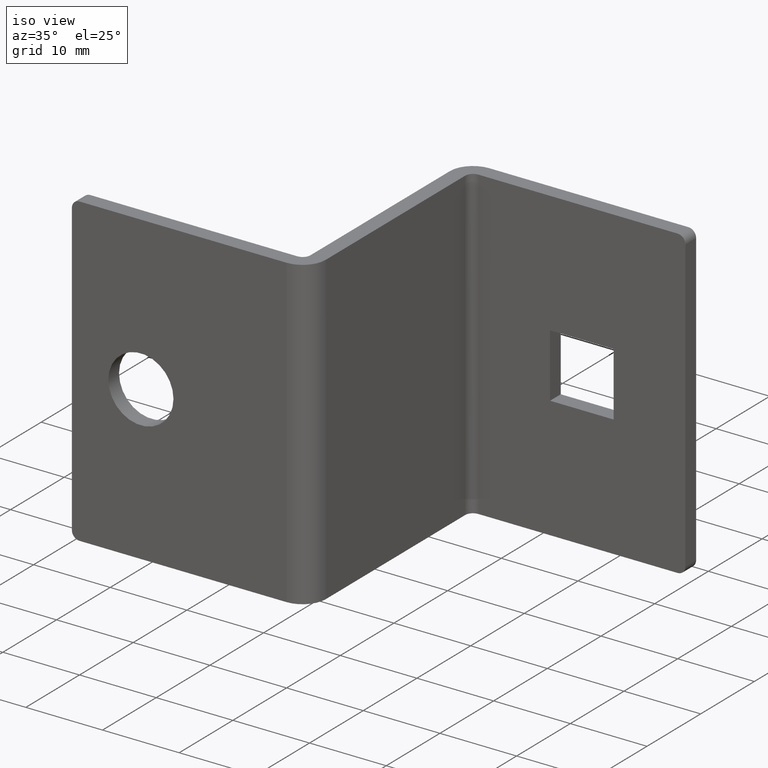
[diagram: clean part render]
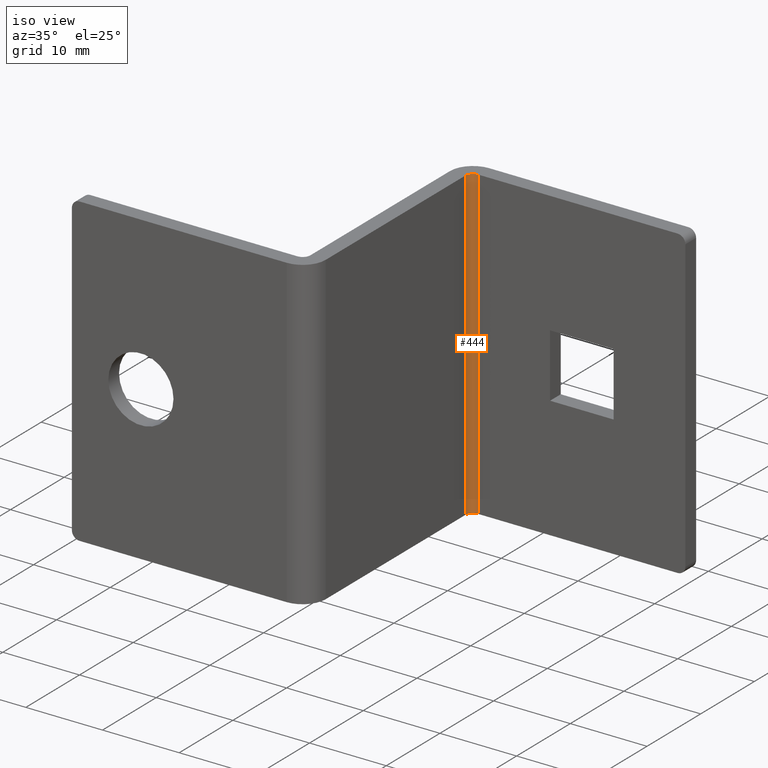
[diagram: same view with one face highlighted and labeled with its STEP entity id]
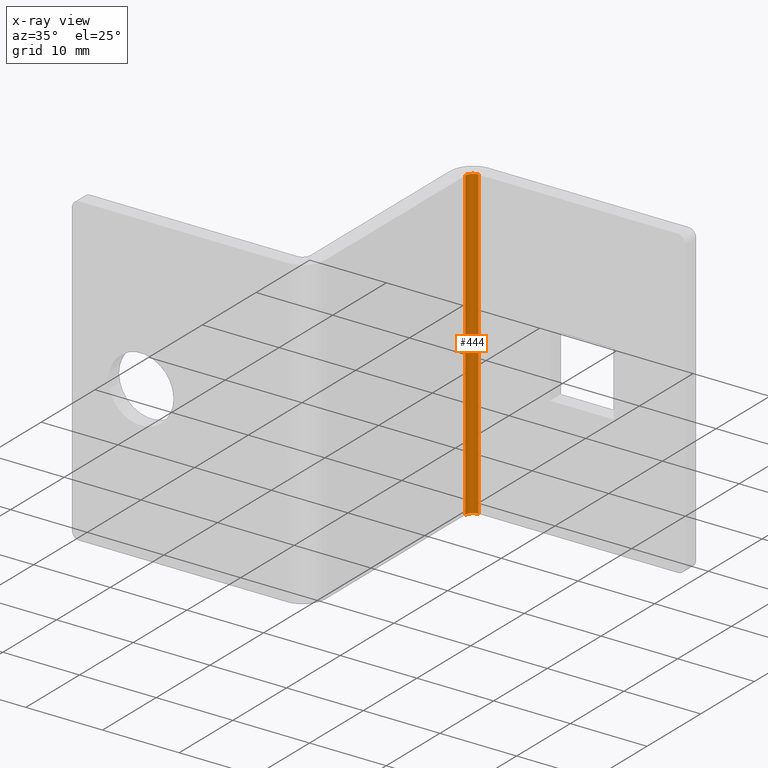
[diagram: x-ray of the same camera — body ghosted, the highlighted face saturated]
A machine part, iso view. The second image highlights one B-rep face of the part: STEP entity #444.
The next image is the same camera in x-ray: the body ghosted, the highlighted face saturated — about 0% of this face is hidden behind the body in this view.
In plain terms, the highlighted cylindrical surface (edge-blend (fillet) strip) has radius 1 mm, axis along (0, 0, 1).
Its self-contained STEP definition (entity closure, byte-faithful):
#44=LINE('',#674,#88);
#65=LINE('',#732,#109);
#88=VECTOR('',#543,40.);
#109=VECTOR('',#598,40.);
#138=FACE_OUTER_BOUND('',#164,.T.);
#164=EDGE_LOOP('',(#366,#367,#368,#369));
#187=CIRCLE('',#484,1.00000000000001);
#188=CIRCLE('',#485,1.00000000000001);
#209=VERTEX_POINT('',#671);
#210=VERTEX_POINT('',#673);
#229=VERTEX_POINT('',#728);
#230=VERTEX_POINT('',#730);
#256=EDGE_CURVE('',#210,#209,#44,.T.);
#283=EDGE_CURVE('',#229,#210,#187,.T.);
#284=EDGE_CURVE('',#230,#209,#188,.T.);
#285=EDGE_CURVE('',#229,#230,#65,.T.);
#366=ORIENTED_EDGE('',*,*,#283,.T.);
#367=ORIENTED_EDGE('',*,*,#256,.T.);
#368=ORIENTED_EDGE('',*,*,#284,.F.);
#369=ORIENTED_EDGE('',*,*,#285,.F.);
#426=CYLINDRICAL_SURFACE('',#483,1.00000000000001);
#444=ADVANCED_FACE('',(#138),#426,.F.);
#483=AXIS2_PLACEMENT_3D('',#727,#592,#593);
#484=AXIS2_PLACEMENT_3D('',#729,#594,#595);
#485=AXIS2_PLACEMENT_3D('',#731,#596,#597);
#543=DIRECTION('',(0.,0.,1.));
#592=DIRECTION('center_axis',(0.,0.,1.));
#593=DIRECTION('ref_axis',(1.77635683940026E-14,-1.,0.));
#594=DIRECTION('center_axis',(0.,0.,-1.));
#595=DIRECTION('ref_axis',(1.77635683940026E-14,-1.,0.));
#596=DIRECTION('center_axis',(0.,0.,-1.));
#597=DIRECTION('ref_axis',(1.77635683940026E-14,-1.,0.));
#598=DIRECTION('',(0.,0.,1.));
#671=CARTESIAN_POINT('',(43.0125837680259,65.7006300239079,40.));
#673=CARTESIAN_POINT('',(43.0125837680259,65.7006300239079,0.));
#674=CARTESIAN_POINT('',(43.0125837680259,65.7006300239079,0.));
#727=CARTESIAN_POINT('Origin',(43.0125837680259,64.7006300239079,0.));
#728=CARTESIAN_POINT('',(42.0125837680259,64.7006300239079,0.));
#729=CARTESIAN_POINT('Origin',(43.0125837680259,64.7006300239079,0.));
#730=CARTESIAN_POINT('',(42.0125837680259,64.7006300239079,40.));
#731=CARTESIAN_POINT('Origin',(43.0125837680259,64.7006300239079,40.));
#732=CARTESIAN_POINT('',(42.0125837680259,64.7006300239079,0.));